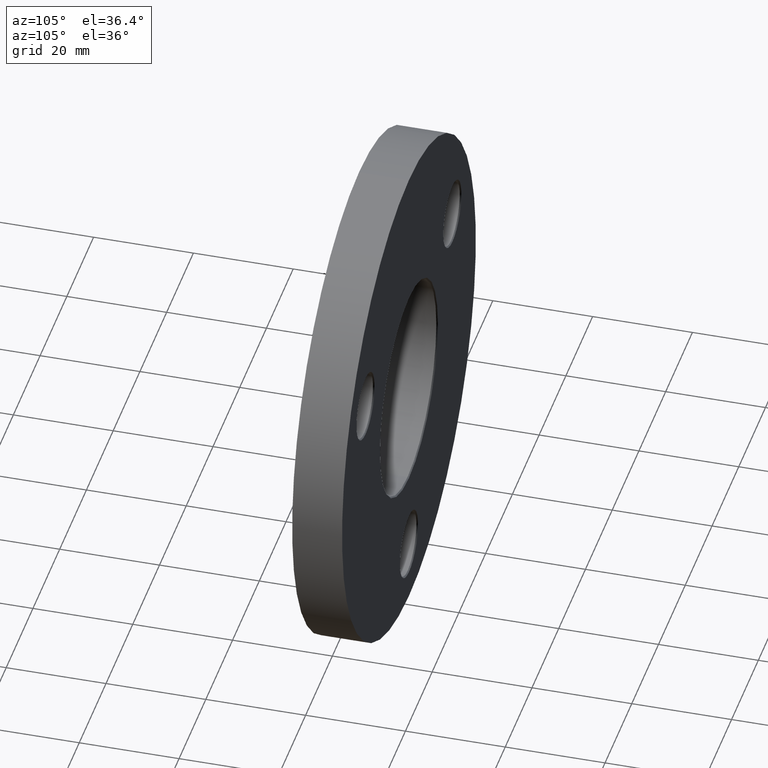
[diagram: clean part render]
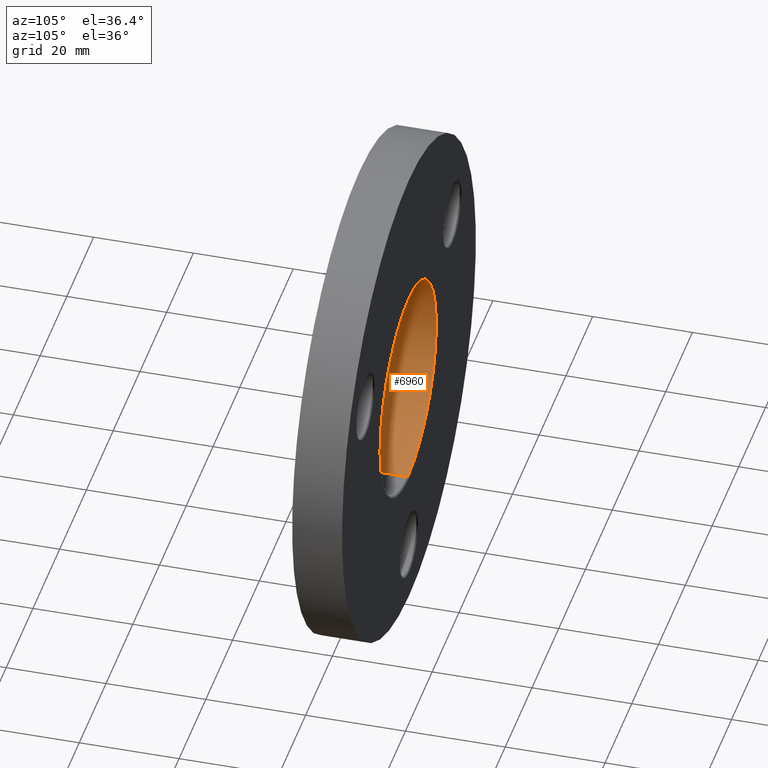
[diagram: same view with one face highlighted and labeled with its STEP entity id]
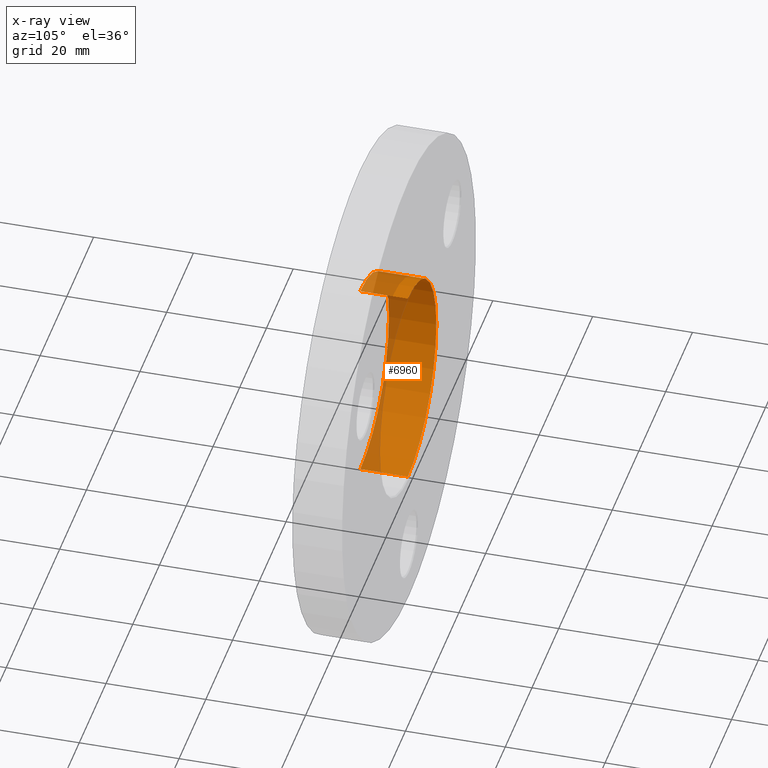
[diagram: x-ray of the same camera — body ghosted, the highlighted face saturated]
A machine part, auxiliary view. The second image highlights one B-rep face of the part: STEP entity #6960.
The next image is the same camera in x-ray: the body ghosted, the highlighted face saturated — about 23% of this face is hidden behind the body in this view.
In plain terms, the highlighted cylindrical surface (partial cylindrical patch) has radius 21.4 mm, axis along (-0, 1, -0).
Its self-contained STEP definition (entity closure, byte-faithful):
#118 = ORIENTED_EDGE ( 'NONE', *, *, #6641, .F. ) ;
#376 = DIRECTION ( 'NONE',  ( 0.000000000000000000, 1.000000000000000000, 0.000000000000000000 ) ) ;
#391 = CYLINDRICAL_SURFACE ( 'NONE', #9962, 21.39999999999999858 ) ;
#577 = LINE ( 'NONE', #6979, #9443 ) ;
#1095 = VERTEX_POINT ( 'NONE', #10436 ) ;
#1821 = EDGE_LOOP ( 'NONE', ( #9037, #13595, #13788, #118 ) ) ;
#2799 = DIRECTION ( 'NONE',  ( 0.000000000000000000, 0.000000000000000000, 1.000000000000000000 ) ) ;
#2847 = CIRCLE ( 'NONE', #10864, 21.39999999999999858 ) ;
#3050 = CARTESIAN_POINT ( 'NONE',  ( 0.000000000000000000, 0.000000000000000000, 0.000000000000000000 ) ) ;
#3935 = CARTESIAN_POINT ( 'NONE',  ( 0.000000000000000000, 9.750000000000010658, 21.39999999999999858 ) ) ;
#5633 = DIRECTION ( 'NONE',  ( -0.000000000000000000, 1.000000000000000000, -0.000000000000000000 ) ) ;
#5772 = DIRECTION ( 'NONE',  ( -0.000000000000000000, 1.000000000000000000, -0.000000000000000000 ) ) ;
#5833 = VERTEX_POINT ( 'NONE', #6328 ) ;
#6328 = CARTESIAN_POINT ( 'NONE',  ( 2.620744150175335878E-15, 0.2499999999999932832, -21.39999999999999858 ) ) ;
#6463 = CARTESIAN_POINT ( 'NONE',  ( 0.000000000000000000, 0.2499999999999932832, 0.000000000000000000 ) ) ;
#6641 = EDGE_CURVE ( 'NONE', #12941, #9697, #577, .T. ) ;
#6960 = ADVANCED_FACE ( 'NONE', ( #14556 ), #391, .F. ) ;
#6979 = CARTESIAN_POINT ( 'NONE',  ( 0.000000000000000000, 0.000000000000000000, 21.39999999999999858 ) ) ;
#7638 = DIRECTION ( 'NONE',  ( -0.000000000000000000, -1.000000000000000000, -0.000000000000000000 ) ) ;
#8802 = DIRECTION ( 'NONE',  ( 0.000000000000000000, 0.000000000000000000, 1.000000000000000000 ) ) ;
#8918 = CIRCLE ( 'NONE', #12707, 21.39999999999999858 ) ;
#9037 = ORIENTED_EDGE ( 'NONE', *, *, #14147, .T. ) ;
#9443 = VECTOR ( 'NONE', #5772, 1000.000000000000000 ) ;
#9697 = VERTEX_POINT ( 'NONE', #3935 ) ;
#9962 = AXIS2_PLACEMENT_3D ( 'NONE', #3050, #14581, #12858 ) ;
#10436 = CARTESIAN_POINT ( 'NONE',  ( 2.620744150175335878E-15, 9.750000000000010658, -21.39999999999999858 ) ) ;
#10864 = AXIS2_PLACEMENT_3D ( 'NONE', #13198, #376, #2799 ) ;
#11148 = CARTESIAN_POINT ( 'NONE',  ( 0.000000000000000000, 0.2499999999999932832, 21.39999999999999858 ) ) ;
#11232 = CARTESIAN_POINT ( 'NONE',  ( 2.620744150175335878E-15, 0.000000000000000000, -21.39999999999999858 ) ) ;
#11272 = LINE ( 'NONE', #11232, #12737 ) ;
#11750 = EDGE_CURVE ( 'NONE', #1095, #9697, #2847, .T. ) ;
#12707 = AXIS2_PLACEMENT_3D ( 'NONE', #6463, #7638, #8802 ) ;
#12737 = VECTOR ( 'NONE', #5633, 1000.000000000000000 ) ;
#12858 = DIRECTION ( 'NONE',  ( 0.000000000000000000, 0.000000000000000000, 1.000000000000000000 ) ) ;
#12941 = VERTEX_POINT ( 'NONE', #11148 ) ;
#13198 = CARTESIAN_POINT ( 'NONE',  ( 0.000000000000000000, 9.750000000000010658, 0.000000000000000000 ) ) ;
#13595 = ORIENTED_EDGE ( 'NONE', *, *, #14643, .T. ) ;
#13788 = ORIENTED_EDGE ( 'NONE', *, *, #11750, .T. ) ;
#14147 = EDGE_CURVE ( 'NONE', #12941, #5833, #8918, .T. ) ;
#14556 = FACE_OUTER_BOUND ( 'NONE', #1821, .T. ) ;
#14581 = DIRECTION ( 'NONE',  ( -0.000000000000000000, 1.000000000000000000, -0.000000000000000000 ) ) ;
#14643 = EDGE_CURVE ( 'NONE', #5833, #1095, #11272, .T. ) ;